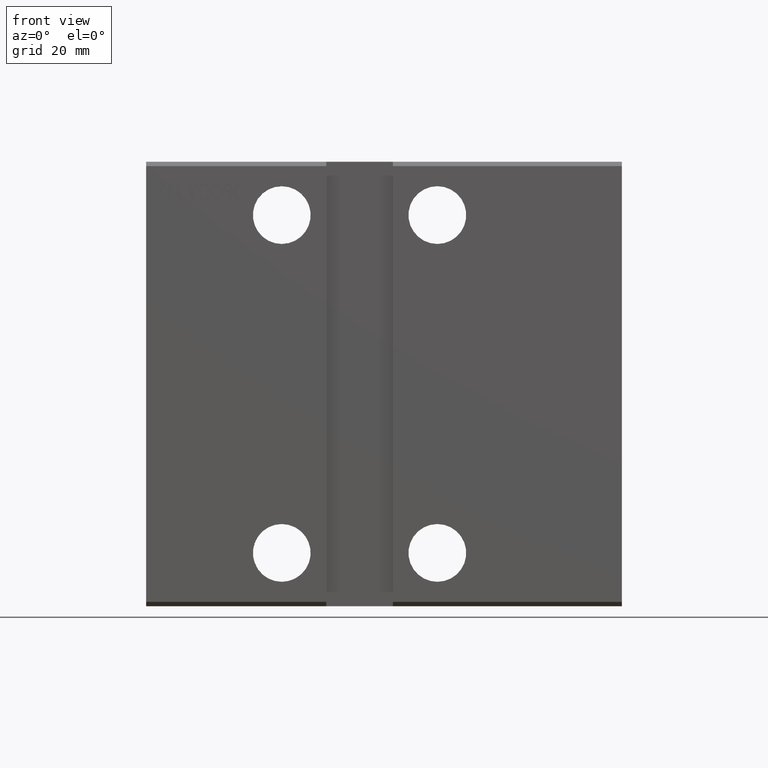
[diagram: clean part render]
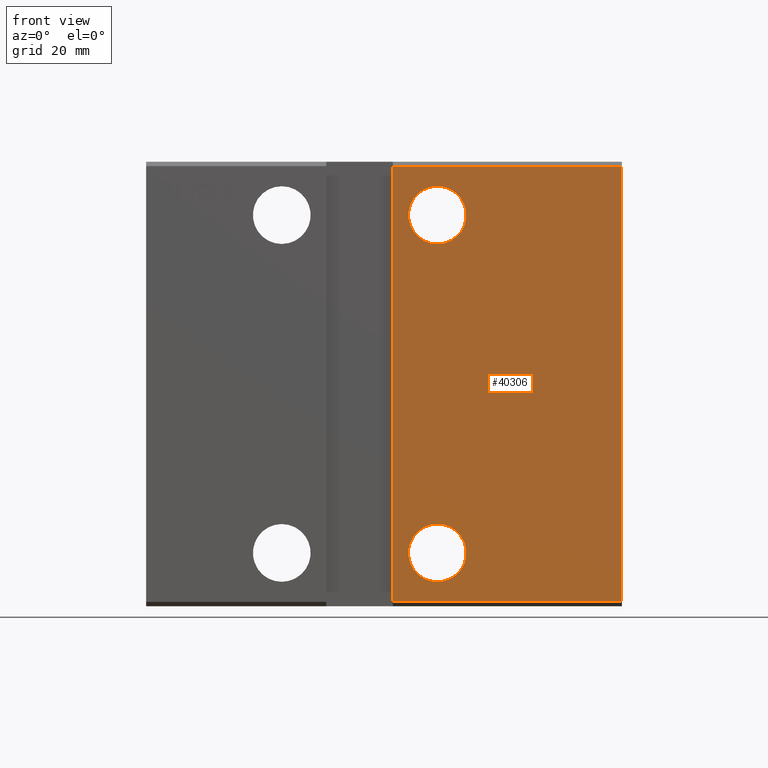
[diagram: same view with one face highlighted and labeled with its STEP entity id]
A machine part, front view. The second image highlights one B-rep face of the part: STEP entity #40306.
In plain terms, the highlighted planar face has unit normal (-0, 1, 0).
Its self-contained STEP definition (entity closure, byte-faithful):
#682 = CARTESIAN_POINT ( 'NONE',  ( 65.50000000000001421, -37.50000000000001421, -44.50000000000000000 ) ) ;
#972 = EDGE_CURVE ( 'NONE', #13145, #12351, #8089, .T. ) ;
#1401 = DIRECTION ( 'NONE',  ( -0.000000000000000000, 1.000000000000000000, 0.000000000000000000 ) ) ;
#1598 = EDGE_LOOP ( 'NONE', ( #24275, #33493, #12972, #12333 ) ) ;
#1981 = EDGE_LOOP ( 'NONE', ( #10041, #27771 ) ) ;
#3197 = EDGE_CURVE ( 'NONE', #34581, #6929, #23486, .T. ) ;
#3642 = DIRECTION ( 'NONE',  ( 0.000000000000000000, -0.000000000000000000, 1.000000000000000000 ) ) ;
#3814 = EDGE_CURVE ( 'NONE', #7902, #34760, #5600, .T. ) ;
#4245 = LINE ( 'NONE', #38648, #30789 ) ;
#4309 = CARTESIAN_POINT ( 'NONE',  ( 65.50000000000001421, -37.50000000000001421, -38.00000000000000000 ) ) ;
#5004 = AXIS2_PLACEMENT_3D ( 'NONE', #21215, #39284, #17710 ) ;
#5463 = EDGE_CURVE ( 'NONE', #13145, #35491, #29740, .T. ) ;
#5559 = EDGE_CURVE ( 'NONE', #12351, #13311, #4245, .T. ) ;
#5581 = CARTESIAN_POINT ( 'NONE',  ( 65.50000000000000000, -37.50000000000001421, 44.50000000000000000 ) ) ;
#5600 = CIRCLE ( 'NONE', #29465, 6.499999999999999112 ) ;
#5628 = CARTESIAN_POINT ( 'NONE',  ( 65.50000000000000000, -37.50000000000001421, 38.00000000000000000 ) ) ;
#6385 = DIRECTION ( 'NONE',  ( -2.081668171172169006E-16, -0.000000000000000000, 1.000000000000000000 ) ) ;
#6391 = EDGE_CURVE ( 'NONE', #13311, #35491, #22135, .T. ) ;
#6657 = CARTESIAN_POINT ( 'NONE',  ( 65.50000000000001421, -37.50000000000001421, -31.50000000000000000 ) ) ;
#6929 = VERTEX_POINT ( 'NONE', #682 ) ;
#7079 = CARTESIAN_POINT ( 'NONE',  ( 55.50000000000000000, -37.50000000000001421, 48.99999999999998579 ) ) ;
#7902 = VERTEX_POINT ( 'NONE', #21558 ) ;
#8089 = LINE ( 'NONE', #24253, #35675 ) ;
#8978 = AXIS2_PLACEMENT_3D ( 'NONE', #32651, #38659, #3642 ) ;
#10041 = ORIENTED_EDGE ( 'NONE', *, *, #3814, .F. ) ;
#10396 = EDGE_LOOP ( 'NONE', ( #31609, #11714 ) ) ;
#10524 = EDGE_CURVE ( 'NONE', #6929, #34581, #12940, .T. ) ;
#11238 = DIRECTION ( 'NONE',  ( 0.000000000000000000, 0.000000000000000000, 1.000000000000000000 ) ) ;
#11714 = ORIENTED_EDGE ( 'NONE', *, *, #3197, .T. ) ;
#12333 = ORIENTED_EDGE ( 'NONE', *, *, #972, .F. ) ;
#12351 = VERTEX_POINT ( 'NONE', #21095 ) ;
#12491 = DIRECTION ( 'NONE',  ( 0.000000000000000000, -1.000000000000000000, -0.000000000000000000 ) ) ;
#12940 = CIRCLE ( 'NONE', #5004, 6.499999999999999112 ) ;
#12972 = ORIENTED_EDGE ( 'NONE', *, *, #5559, .F. ) ;
#13145 = VERTEX_POINT ( 'NONE', #25288 ) ;
#13311 = VERTEX_POINT ( 'NONE', #38768 ) ;
#13785 = FACE_BOUND ( 'NONE', #10396, .T. ) ;
#14554 = DIRECTION ( 'NONE',  ( 0.000000000000000000, -1.000000000000000000, -0.000000000000000000 ) ) ;
#14891 = VECTOR ( 'NONE', #35349, 1000.000000000000000 ) ;
#15604 = VECTOR ( 'NONE', #6385, 1000.000000000000000 ) ;
#15608 = DIRECTION ( 'NONE',  ( 0.000000000000000000, 0.000000000000000000, 1.000000000000000000 ) ) ;
#17710 = DIRECTION ( 'NONE',  ( 0.000000000000000000, 0.000000000000000000, 1.000000000000000000 ) ) ;
#18678 = AXIS2_PLACEMENT_3D ( 'NONE', #28249, #12491, #15608 ) ;
#19770 = CARTESIAN_POINT ( 'NONE',  ( 107.0000000000000000, -37.50000000000001421, 48.99999999999998579 ) ) ;
#19781 = PLANE ( 'NONE',  #8978 ) ;
#21095 = CARTESIAN_POINT ( 'NONE',  ( 107.0000000000000000, -37.50000000000001421, -49.00000000000000000 ) ) ;
#21215 = CARTESIAN_POINT ( 'NONE',  ( 65.50000000000001421, -37.50000000000001421, -38.00000000000000000 ) ) ;
#21558 = CARTESIAN_POINT ( 'NONE',  ( 65.50000000000000000, -37.50000000000001421, 31.50000000000000000 ) ) ;
#22135 = LINE ( 'NONE', #40998, #15604 ) ;
#22831 = AXIS2_PLACEMENT_3D ( 'NONE', #4309, #1401, #38918 ) ;
#22900 = DIRECTION ( 'NONE',  ( -1.000000000000000000, -0.000000000000000000, -0.000000000000000000 ) ) ;
#23486 = CIRCLE ( 'NONE', #22831, 6.499999999999999112 ) ;
#24253 = CARTESIAN_POINT ( 'NONE',  ( 107.0000000000000000, -37.50000000000001421, 48.99999999999998579 ) ) ;
#24275 = ORIENTED_EDGE ( 'NONE', *, *, #5463, .T. ) ;
#25288 = CARTESIAN_POINT ( 'NONE',  ( 107.0000000000000000, -37.50000000000001421, 48.99999999999998579 ) ) ;
#26224 = FACE_OUTER_BOUND ( 'NONE', #1598, .T. ) ;
#27771 = ORIENTED_EDGE ( 'NONE', *, *, #29934, .F. ) ;
#28249 = CARTESIAN_POINT ( 'NONE',  ( 65.50000000000000000, -37.50000000000001421, 38.00000000000000000 ) ) ;
#29339 = FACE_BOUND ( 'NONE', #1981, .T. ) ;
#29465 = AXIS2_PLACEMENT_3D ( 'NONE', #5628, #14554, #11238 ) ;
#29740 = LINE ( 'NONE', #19770, #14891 ) ;
#29934 = EDGE_CURVE ( 'NONE', #34760, #7902, #39227, .T. ) ;
#30789 = VECTOR ( 'NONE', #22900, 1000.000000000000000 ) ;
#31609 = ORIENTED_EDGE ( 'NONE', *, *, #10524, .T. ) ;
#32651 = CARTESIAN_POINT ( 'NONE',  ( 107.0000000000000000, -37.50000000000001421, 48.99999999999998579 ) ) ;
#33493 = ORIENTED_EDGE ( 'NONE', *, *, #6391, .F. ) ;
#34581 = VERTEX_POINT ( 'NONE', #6657 ) ;
#34760 = VERTEX_POINT ( 'NONE', #5581 ) ;
#35349 = DIRECTION ( 'NONE',  ( -1.000000000000000000, -0.000000000000000000, -0.000000000000000000 ) ) ;
#35491 = VERTEX_POINT ( 'NONE', #7079 ) ;
#35675 = VECTOR ( 'NONE', #36089, 1000.000000000000000 ) ;
#36089 = DIRECTION ( 'NONE',  ( 0.000000000000000000, 0.000000000000000000, -1.000000000000000000 ) ) ;
#38648 = CARTESIAN_POINT ( 'NONE',  ( 107.0000000000000000, -37.50000000000001421, -49.00000000000000000 ) ) ;
#38659 = DIRECTION ( 'NONE',  ( -0.000000000000000000, 1.000000000000000000, 0.000000000000000000 ) ) ;
#38768 = CARTESIAN_POINT ( 'NONE',  ( 55.50000000000002132, -37.50000000000001421, -48.99999999999997158 ) ) ;
#38918 = DIRECTION ( 'NONE',  ( 0.000000000000000000, 0.000000000000000000, 1.000000000000000000 ) ) ;
#39227 = CIRCLE ( 'NONE', #18678, 6.499999999999999112 ) ;
#39284 = DIRECTION ( 'NONE',  ( -0.000000000000000000, 1.000000000000000000, 0.000000000000000000 ) ) ;
#40306 = ADVANCED_FACE ( 'NONE', ( #13785, #26224, #29339 ), #19781, .F. ) ;
#40998 = CARTESIAN_POINT ( 'NONE',  ( 55.50000000000000000, -37.50000000000001421, 49.99999999999998579 ) ) ;